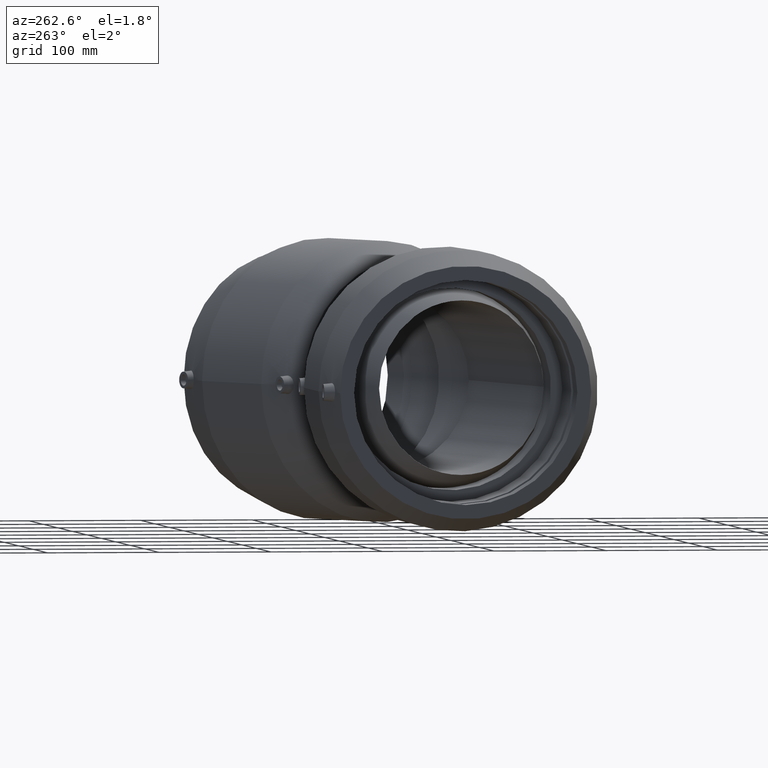
[diagram: clean part render]
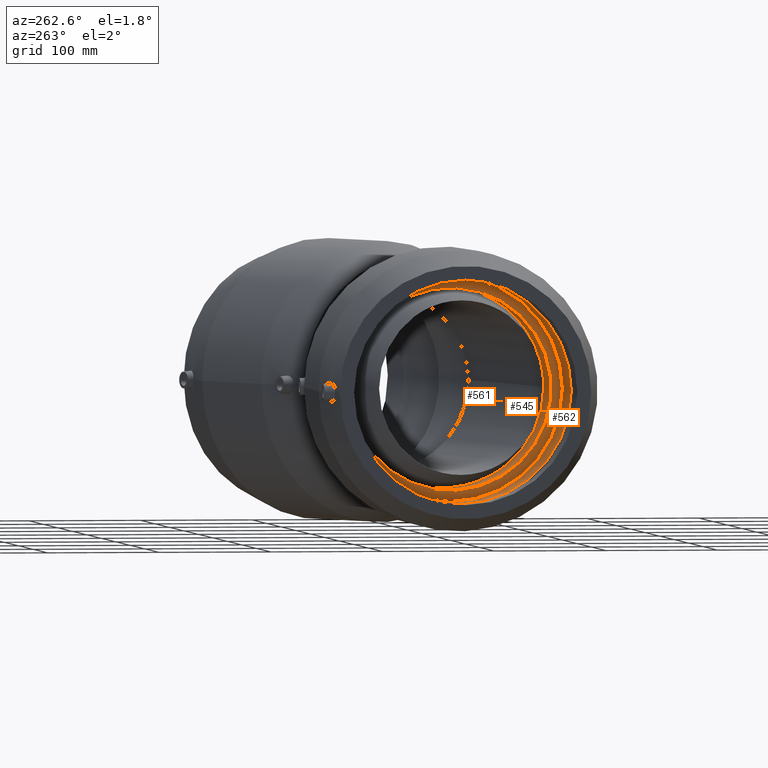
[diagram: same view with one multi-face feature highlighted, each face labeled with its STEP entity id]
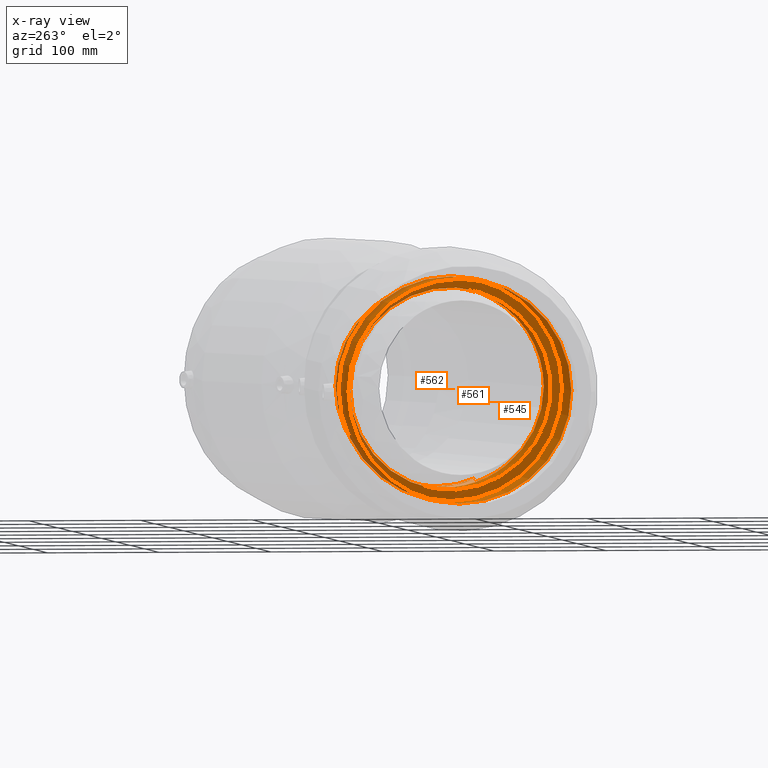
[diagram: x-ray of the same camera — body ghosted, the whole feature saturated]
A machine part, auxiliary view. The highlighted faces form ONE feature: a stepped (counterbored) hole: 2 coaxial cylindrical walls of radii 90 -> 100 mm joined by 1 annular planar shoulder face(s). The faces share edges in the B-rep.
The next image is the same camera in x-ray: the body ghosted and the whole hole feature saturated, so the bore chain is visible through the body.
Their STEP definitions:
[1] entity #562 (Cylinder):
#53=CYLINDRICAL_SURFACE('',#636,100.);
#83=FACE_BOUND('',#205,.T.);
#134=FACE_OUTER_BOUND('',#204,.T.);
#204=EDGE_LOOP('',(#477));
#205=EDGE_LOOP('',(#478));
#292=CIRCLE('',#635,100.);
#293=CIRCLE('',#637,100.);
#343=VERTEX_POINT('',#1226);
#344=VERTEX_POINT('',#1229);
#398=EDGE_CURVE('',#343,#343,#292,.T.);
#399=EDGE_CURVE('',#344,#344,#293,.T.);
#477=ORIENTED_EDGE('',*,*,#399,.F.);
#478=ORIENTED_EDGE('',*,*,#398,.T.);
#562=ADVANCED_FACE('',(#134,#83),#53,.F.);
#635=AXIS2_PLACEMENT_3D('',#1227,#777,#778);
#636=AXIS2_PLACEMENT_3D('',#1228,#779,#780);
#637=AXIS2_PLACEMENT_3D('',#1230,#781,#782);
#777=DIRECTION('center_axis',(1.,1.83697019872103E-16,0.));
#778=DIRECTION('ref_axis',(0.,0.,-1.));
#779=DIRECTION('center_axis',(1.,1.83697019872103E-16,0.));
#780=DIRECTION('ref_axis',(-1.88286226120913E-16,1.,0.));
#781=DIRECTION('center_axis',(1.,1.83697019872103E-16,0.));
#782=DIRECTION('ref_axis',(0.,0.,-1.));
#1226=CARTESIAN_POINT('',(1.59999999999997,100.,0.));
#1227=CARTESIAN_POINT('Origin',(1.59999999999998,1.91044900666987E-14,0.));
#1228=CARTESIAN_POINT('Origin',(-29.6,1.33731430466891E-14,0.));
#1229=CARTESIAN_POINT('',(-60.8,100.,0.));
#1230=CARTESIAN_POINT('Origin',(-60.8,7.64179602667948E-15,0.));
[2] entity #545 (Cylinder):
#47=CYLINDRICAL_SURFACE('',#603,90.);
#67=FACE_BOUND('',#172,.T.);
#117=FACE_OUTER_BOUND('',#171,.T.);
#171=EDGE_LOOP('',(#441,#442,#443));
#172=EDGE_LOOP('',(#444));
#265=B_SPLINE_CURVE_WITH_KNOTS('',3,(#1003,#1004,#1005,#1006,#1007,#1008,
#1009,#1010,#1011,#1012,#1013,#1014,#1015,#1016,#1017,#1018,#1019,#1020,
#1021,#1022,#1023,#1024,#1025,#1026,#1027,#1028,#1029,#1030,#1031,#1032,
#1033,#1034,#1035,#1036,#1037,#1038,#1039,#1040,#1041,#1042,#1043,#1044,
#1045,#1046,#1047,#1048,#1049,#1050,#1051,#1052,#1053),.UNSPECIFIED.,.F.,
 .F.,(4,2,2,2,2,2,2,2,2,3,2,2,2,2,2,2,2,2,2,2,2,2,2,2,4),(-5.27658795739969,
-4.36427409902188,-3.20168457753736,-2.30254579906873,-1.4034070206001,
-1.06949698279742,-0.735586944994736,-0.367793472497368,-0.183896736248684,
0.,0.183896736248683,0.367793472497365,0.73558694499473,1.06949698279741,
1.40340702060009,2.30254579906872,3.20168457753735,4.36427409902186,5.52686362050637,
6.68945314199088,7.85204266347539,9.69915597409917,11.5462692847229,13.3933825953467,
15.2404959059705),.UNSPECIFIED.);
#266=B_SPLINE_CURVE_WITH_KNOTS('',3,(#1056,#1057,#1058,#1059,#1060,#1061,
#1062,#1063,#1064,#1065,#1066,#1067,#1068,#1069,#1070,#1071,#1072,#1073,
#1074,#1075,#1076,#1077,#1078,#1079,#1080,#1081,#1082,#1083,#1084,#1085,
#1086,#1087,#1088,#1089,#1090,#1091,#1092,#1093,#1094,#1095,#1096,#1097,
#1098,#1099,#1100,#1101,#1102,#1103,#1104,#1105),.UNSPECIFIED.,.F.,.F.,
(4,2,2,2,2,2,2,2,2,2,2,2,2,2,2,2,2,2,2,2,2,2,2,2,4),(15.2404959059705,17.0876092165943,
18.934722527218,20.7818358378418,22.6289491484656,23.7915386699501,24.9541281914346,
26.1167177129191,27.2793072344036,28.1784460128723,29.0775847913409,29.4114948291436,
29.7454048669463,30.1131983394436,30.2970950756923,30.480991811941,30.6648885481897,
30.8487852844383,31.2165787569357,31.5504887947384,31.8843988325411,32.7835376110097,
33.6826763894783,34.8452659109629,35.757579769343),.UNSPECIFIED.);
#277=CIRCLE('',#604,90.);
#278=CIRCLE('',#605,90.);
#323=VERTEX_POINT('',#1000);
#324=VERTEX_POINT('',#1002);
#325=VERTEX_POINT('',#1054);
#327=VERTEX_POINT('',#1112);
#377=EDGE_CURVE('',#324,#323,#265,.T.);
#379=EDGE_CURVE('',#323,#325,#266,.T.);
#381=EDGE_CURVE('',#325,#324,#277,.T.);
#382=EDGE_CURVE('',#327,#327,#278,.T.);
#441=ORIENTED_EDGE('',*,*,#377,.T.);
#442=ORIENTED_EDGE('',*,*,#379,.T.);
#443=ORIENTED_EDGE('',*,*,#381,.T.);
#444=ORIENTED_EDGE('',*,*,#382,.F.);
#545=ADVANCED_FACE('',(#117,#67),#47,.F.);
#603=AXIS2_PLACEMENT_3D('',#1110,#713,#714);
#604=AXIS2_PLACEMENT_3D('',#1111,#715,#716);
#605=AXIS2_PLACEMENT_3D('',#1113,#717,#718);
#713=DIRECTION('center_axis',(1.,1.83697019872103E-16,0.));
#714=DIRECTION('ref_axis',(-1.88286226120913E-16,1.,0.));
#715=DIRECTION('center_axis',(1.,1.83697019872103E-16,0.));
#716=DIRECTION('ref_axis',(0.,0.,-1.));
#717=DIRECTION('center_axis',(1.,1.83697019872103E-16,0.));
#718=DIRECTION('ref_axis',(0.,0.,-1.));
#1000=CARTESIAN_POINT('',(52.,-89.9999999999999,0.));
#1002=CARTESIAN_POINT('',(102.4,-36.8920034830724,82.0912911276523));
#1003=CARTESIAN_POINT('Ctrl Pts',(102.4,-36.8920034830725,82.0912911276523));
#1004=CARTESIAN_POINT('Ctrl Pts',(101.774393146588,-33.9487546438159,83.4139935110337));
#1005=CARTESIAN_POINT('Ctrl Pts',(101.108454518854,-30.9495227242931,84.5698616363642));
#1006=CARTESIAN_POINT('Ctrl Pts',(99.5045589044418,-24.1356010437498,86.7963450078791));
#1007=CARTESIAN_POINT('Ctrl Pts',(98.5419676842706,-20.3223149950576,87.7551940559661));
#1008=CARTESIAN_POINT('Ctrl Pts',(96.7270601396166,-13.8082677028086,88.9813916379728));
#1009=CARTESIAN_POINT('Ctrl Pts',(95.7958567568409,-10.6793228176411,89.4183237324101));
#1010=CARTESIAN_POINT('Ctrl Pts',(93.6976541724627,-4.47742385877409,89.9424106276693));
#1011=CARTESIAN_POINT('Ctrl Pts',(92.5293331943539,-1.40496535466373,90.0301369707387));
#1012=CARTESIAN_POINT('Ctrl Pts',(90.8037567073622,2.32502832037997,89.9756340901957));
#1013=CARTESIAN_POINT('Ctrl Pts',(90.2611628704397,3.42163726517807,89.9412638080811));
#1014=CARTESIAN_POINT('Ctrl Pts',(89.0738764589923,5.55302720788367,89.8348619639355));
#1015=CARTESIAN_POINT('Ctrl Pts',(88.427592640626,6.58693622650098,89.7631271958564));
#1016=CARTESIAN_POINT('Ctrl Pts',(87.046185617781,8.46791150974489,89.6062120644133));
#1017=CARTESIAN_POINT('Ctrl Pts',(86.1698815923936,9.4831370444501,89.5023364054593));
#1018=CARTESIAN_POINT('Ctrl Pts',(84.6673640109932,10.6356506699211,89.3701989611815));
#1019=CARTESIAN_POINT('Ctrl Pts',(84.1348852013241,10.9580531500583,89.3306923830536));
#1020=CARTESIAN_POINT('Ctrl Pts',(83.0134091880991,11.4097250654424,89.2741297778447));
#1021=CARTESIAN_POINT('Ctrl Pts',(82.4243710664414,11.5389127225389,89.2572321617785));
#1022=CARTESIAN_POINT('Ctrl Pts',(81.8113819456125,11.5389127225389,89.2572321617785));
#1023=CARTESIAN_POINT('Ctrl Pts',(81.1983928247836,11.5389127225389,89.2572321617785));
#1024=CARTESIAN_POINT('Ctrl Pts',(80.609354703126,11.4097250654422,89.2741297778447));
#1025=CARTESIAN_POINT('Ctrl Pts',(79.487878689901,10.9580531500581,89.3306923830536));
#1026=CARTESIAN_POINT('Ctrl Pts',(78.955399880232,10.6356506699208,89.3701989611816));
#1027=CARTESIAN_POINT('Ctrl Pts',(77.4528822988316,9.48313704444985,89.5023364054594));
#1028=CARTESIAN_POINT('Ctrl Pts',(76.576578273444,8.46791150974488,89.6062120644133));
#1029=CARTESIAN_POINT('Ctrl Pts',(75.195171250599,6.58693622650098,89.7631271958564));
#1030=CARTESIAN_POINT('Ctrl Pts',(74.5488874322328,5.55302720788366,89.8348619639355));
#1031=CARTESIAN_POINT('Ctrl Pts',(73.3616010207854,3.42163726517806,89.9412638080811));
#1032=CARTESIAN_POINT('Ctrl Pts',(72.8190071838628,2.32502832037996,89.9756340901957));
#1033=CARTESIAN_POINT('Ctrl Pts',(71.0934306968711,-1.40496535466373,90.0301369707387));
#1034=CARTESIAN_POINT('Ctrl Pts',(69.9251097187623,-4.4774238587741,89.9424106276693));
#1035=CARTESIAN_POINT('Ctrl Pts',(67.8269071343841,-10.6793228176411,89.4183237324101));
#1036=CARTESIAN_POINT('Ctrl Pts',(66.8957037516084,-13.8082677028086,88.9813916379728));
#1037=CARTESIAN_POINT('Ctrl Pts',(65.0807962069545,-20.3223149950576,87.7551940559661));
#1038=CARTESIAN_POINT('Ctrl Pts',(64.1182049867833,-24.1356010437498,86.7963450078791));
#1039=CARTESIAN_POINT('Ctrl Pts',(62.320846851491,-31.7714206418087,84.301302334948));
#1040=CARTESIAN_POINT('Ctrl Pts',(61.4860020270546,-35.593910950767,82.7650325023573));
#1041=CARTESIAN_POINT('Ctrl Pts',(59.9480040160156,-43.0073822147339,79.1665478416608));
#1042=CARTESIAN_POINT('Ctrl Pts',(59.2441810039058,-46.6013085800772,77.1028854908023));
#1043=CARTESIAN_POINT('Ctrl Pts',(57.9686384285079,-53.3648523052794,72.5860141572443));
#1044=CARTESIAN_POINT('Ctrl Pts',(57.3968667213248,-56.534477340638,70.1328313931803));
#1045=CARTESIAN_POINT('Ctrl Pts',(56.0850606783222,-64.0047691557708,63.5661117683449));
#1046=CARTESIAN_POINT('Ctrl Pts',(55.3651476469439,-68.3265061501705,58.9267322194173));
#1047=CARTESIAN_POINT('Ctrl Pts',(54.129202831936,-75.970013342158,48.6767735896409));
#1048=CARTESIAN_POINT('Ctrl Pts',(53.6126722854394,-79.2923047126744,43.0666433118582));
#1049=CARTESIAN_POINT('Ctrl Pts',(52.7938846428355,-84.6448617706523,31.261046316022));
#1050=CARTESIAN_POINT('Ctrl Pts',(52.4907228112497,-86.6801631475159,25.0545371254919));
#1051=CARTESIAN_POINT('Ctrl Pts',(52.0937199143574,-89.3580731546512,12.5026107910147));
#1052=CARTESIAN_POINT('Ctrl Pts',(52.,-89.9999999999999,6.15704436874594));
#1053=CARTESIAN_POINT('Ctrl Pts',(52.,-89.9999999999999,2.1094237467878E-14));
#1054=CARTESIAN_POINT('',(102.4,-36.8920034830724,-82.0912911276523));
#1056=CARTESIAN_POINT('Ctrl Pts',(52.,-89.9999999999999,5.55111512312578E-15));
#1057=CARTESIAN_POINT('Ctrl Pts',(52.,-89.9999999999999,-6.15704436874591));
#1058=CARTESIAN_POINT('Ctrl Pts',(52.0937199143573,-89.3580731546512,-12.5026107910147));
#1059=CARTESIAN_POINT('Ctrl Pts',(52.4907228112496,-86.6801631475159,-25.0545371254918));
#1060=CARTESIAN_POINT('Ctrl Pts',(52.7938846428355,-84.6448617706523,-31.2610463160219));
#1061=CARTESIAN_POINT('Ctrl Pts',(53.6126722854393,-79.2923047126744,-43.0666433118582));
#1062=CARTESIAN_POINT('Ctrl Pts',(54.1292028319359,-75.970013342158,-48.6767735896409));
#1063=CARTESIAN_POINT('Ctrl Pts',(55.3651476469438,-68.3265061501706,-58.9267322194173));
#1064=CARTESIAN_POINT('Ctrl Pts',(56.0850606783221,-64.0047691557708,-63.5661117683449));
#1065=CARTESIAN_POINT('Ctrl Pts',(57.3968667213248,-56.534477340638,-70.1328313931803));
#1066=CARTESIAN_POINT('Ctrl Pts',(57.9686384285079,-53.3648523052794,-72.5860141572443));
#1067=CARTESIAN_POINT('Ctrl Pts',(59.2441810039058,-46.6013085800773,-77.1028854908022));
#1068=CARTESIAN_POINT('Ctrl Pts',(59.9480040160156,-43.0073822147339,-79.1665478416607));
#1069=CARTESIAN_POINT('Ctrl Pts',(61.4860020270546,-35.593910950767,-82.7650325023573));
#1070=CARTESIAN_POINT('Ctrl Pts',(62.320846851491,-31.7714206418087,-84.301302334948));
#1071=CARTESIAN_POINT('Ctrl Pts',(64.1182049867833,-24.1356010437498,-86.7963450078791));
#1072=CARTESIAN_POINT('Ctrl Pts',(65.0807962069545,-20.3223149950577,-87.755194055966));
#1073=CARTESIAN_POINT('Ctrl Pts',(66.8957037516084,-13.8082677028086,-88.9813916379728));
#1074=CARTESIAN_POINT('Ctrl Pts',(67.8269071343842,-10.6793228176411,-89.4183237324101));
#1075=CARTESIAN_POINT('Ctrl Pts',(69.9251097187623,-4.47742385877409,-89.9424106276693));
#1076=CARTESIAN_POINT('Ctrl Pts',(71.0934306968711,-1.40496535466371,-90.0301369707387));
#1077=CARTESIAN_POINT('Ctrl Pts',(72.8190071838628,2.32502832038003,-89.9756340901957));
#1078=CARTESIAN_POINT('Ctrl Pts',(73.3616010207855,3.42163726517812,-89.9412638080811));
#1079=CARTESIAN_POINT('Ctrl Pts',(74.5488874322329,5.55302720788375,-89.8348619639355));
#1080=CARTESIAN_POINT('Ctrl Pts',(75.1951712505993,6.58693622650104,-89.7631271958564));
#1081=CARTESIAN_POINT('Ctrl Pts',(76.5765782734442,8.4679115097449,-89.6062120644133));
#1082=CARTESIAN_POINT('Ctrl Pts',(77.4528822988318,9.48313704444984,-89.5023364054594));
#1083=CARTESIAN_POINT('Ctrl Pts',(78.9553998802322,10.6356506699208,-89.3701989611816));
#1084=CARTESIAN_POINT('Ctrl Pts',(79.4878786899011,10.9580531500582,-89.3306923830536));
#1085=CARTESIAN_POINT('Ctrl Pts',(80.6093547031261,11.4097250654422,-89.2741297778447));
#1086=CARTESIAN_POINT('Ctrl Pts',(81.1983928247836,11.5389127225389,-89.2572321617785));
#1087=CARTESIAN_POINT('Ctrl Pts',(82.4243710664414,11.5389127225389,-89.2572321617785));
#1088=CARTESIAN_POINT('Ctrl Pts',(83.013409188099,11.4097250654422,-89.2741297778447));
#1089=CARTESIAN_POINT('Ctrl Pts',(84.1348852013239,10.9580531500582,-89.3306923830536));
#1090=CARTESIAN_POINT('Ctrl Pts',(84.6673640109929,10.6356506699208,-89.3701989611816));
#1091=CARTESIAN_POINT('Ctrl Pts',(86.1698815923932,9.48313704444984,-89.5023364054594));
#1092=CARTESIAN_POINT('Ctrl Pts',(87.0461856177808,8.4679115097449,-89.6062120644133));
#1093=CARTESIAN_POINT('Ctrl Pts',(88.4275926406258,6.58693622650103,-89.7631271958564));
#1094=CARTESIAN_POINT('Ctrl Pts',(89.0738764589922,5.55302720788373,-89.8348619639355));
#1095=CARTESIAN_POINT('Ctrl Pts',(90.2611628704396,3.42163726517811,-89.9412638080811));
#1096=CARTESIAN_POINT('Ctrl Pts',(90.8037567073622,2.32502832038002,-89.9756340901957));
#1097=CARTESIAN_POINT('Ctrl Pts',(92.5293331943539,-1.4049653546637,-90.0301369707387));
#1098=CARTESIAN_POINT('Ctrl Pts',(93.6976541724627,-4.47742385877407,-89.9424106276693));
#1099=CARTESIAN_POINT('Ctrl Pts',(95.7958567568409,-10.6793228176411,-89.4183237324101));
#1100=CARTESIAN_POINT('Ctrl Pts',(96.7270601396166,-13.8082677028086,-88.9813916379728));
#1101=CARTESIAN_POINT('Ctrl Pts',(98.5419676842706,-20.3223149950577,-87.755194055966));
#1102=CARTESIAN_POINT('Ctrl Pts',(99.5045589044418,-24.1356010437499,-86.7963450078791));
#1103=CARTESIAN_POINT('Ctrl Pts',(101.108454518856,-30.9495227243008,-84.5698616363617));
#1104=CARTESIAN_POINT('Ctrl Pts',(101.774393146585,-33.9487546437989,-83.4139935110413));
#1105=CARTESIAN_POINT('Ctrl Pts',(102.4,-36.8920034830724,-82.0912911276523));
#1110=CARTESIAN_POINT('Origin',(52.,2.83628198682527E-14,0.));
#1111=CARTESIAN_POINT('Origin',(102.4,3.76211496698067E-14,0.));
#1112=CARTESIAN_POINT('',(1.59999999999997,90.,0.));
#1113=CARTESIAN_POINT('Origin',(1.59999999999998,1.91044900666987E-14,0.));
[3] entity #561 (Plane):
#32=PLANE('',#634);
#82=FACE_BOUND('',#203,.T.);
#133=FACE_OUTER_BOUND('',#202,.T.);
#202=EDGE_LOOP('',(#475));
#203=EDGE_LOOP('',(#476));
#278=CIRCLE('',#605,90.);
#292=CIRCLE('',#635,100.);
#327=VERTEX_POINT('',#1112);
#343=VERTEX_POINT('',#1226);
#382=EDGE_CURVE('',#327,#327,#278,.T.);
#398=EDGE_CURVE('',#343,#343,#292,.T.);
#475=ORIENTED_EDGE('',*,*,#398,.F.);
#476=ORIENTED_EDGE('',*,*,#382,.T.);
#561=ADVANCED_FACE('',(#133,#82),#32,.T.);
#605=AXIS2_PLACEMENT_3D('',#1113,#717,#718);
#634=AXIS2_PLACEMENT_3D('',#1225,#775,#776);
#635=AXIS2_PLACEMENT_3D('',#1227,#777,#778);
#717=DIRECTION('center_axis',(1.,1.83697019872103E-16,0.));
#718=DIRECTION('ref_axis',(0.,0.,-1.));
#775=DIRECTION('center_axis',(-1.,-1.83697019872103E-16,0.));
#776=DIRECTION('ref_axis',(0.,0.,1.));
#777=DIRECTION('center_axis',(1.,1.83697019872103E-16,0.));
#778=DIRECTION('ref_axis',(0.,0.,-1.));
#1112=CARTESIAN_POINT('',(1.59999999999997,90.,0.));
#1113=CARTESIAN_POINT('Origin',(1.59999999999998,1.91044900666987E-14,0.));
#1225=CARTESIAN_POINT('Origin',(1.59999999999997,100.,0.));
#1226=CARTESIAN_POINT('',(1.59999999999997,100.,0.));
#1227=CARTESIAN_POINT('Origin',(1.59999999999998,1.91044900666987E-14,0.));